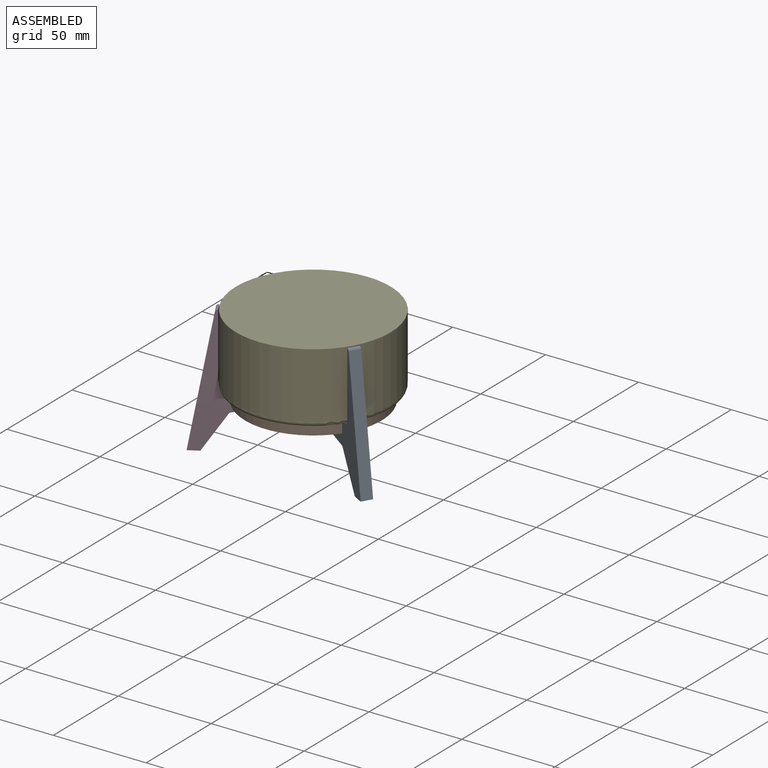
[diagram: assembled view]
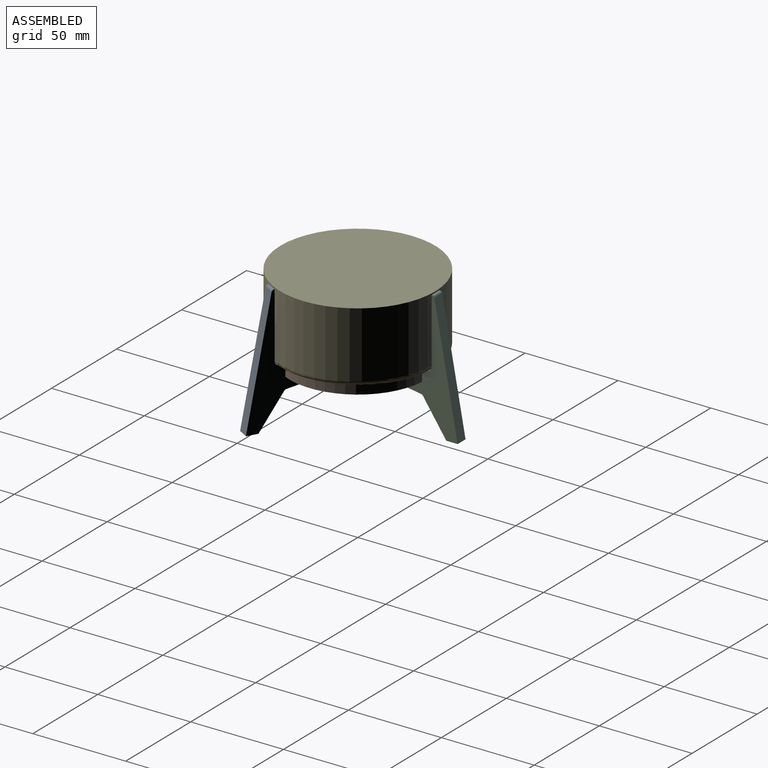
[diagram: assembled view, second angle]
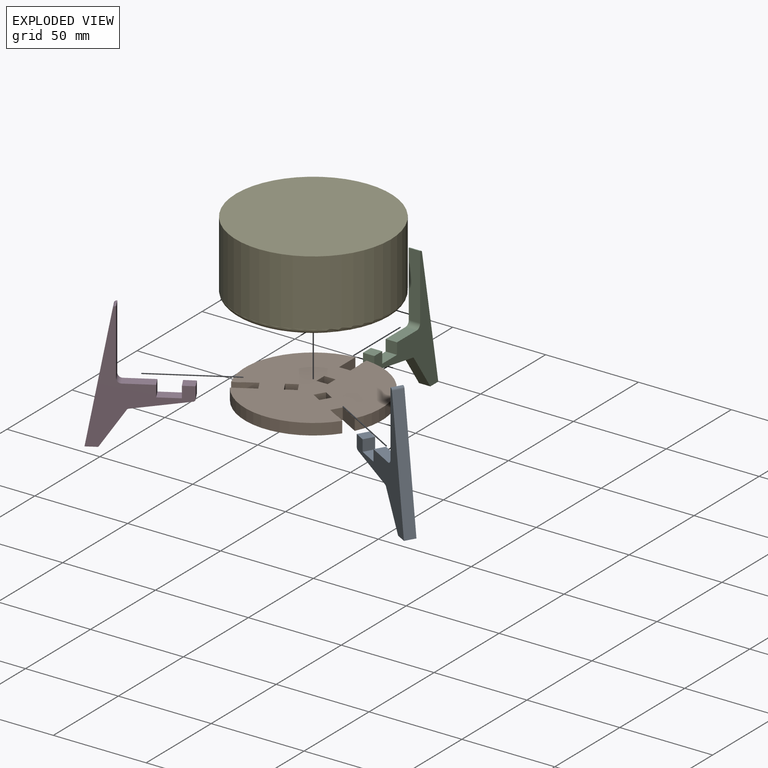
[diagram: exploded view]
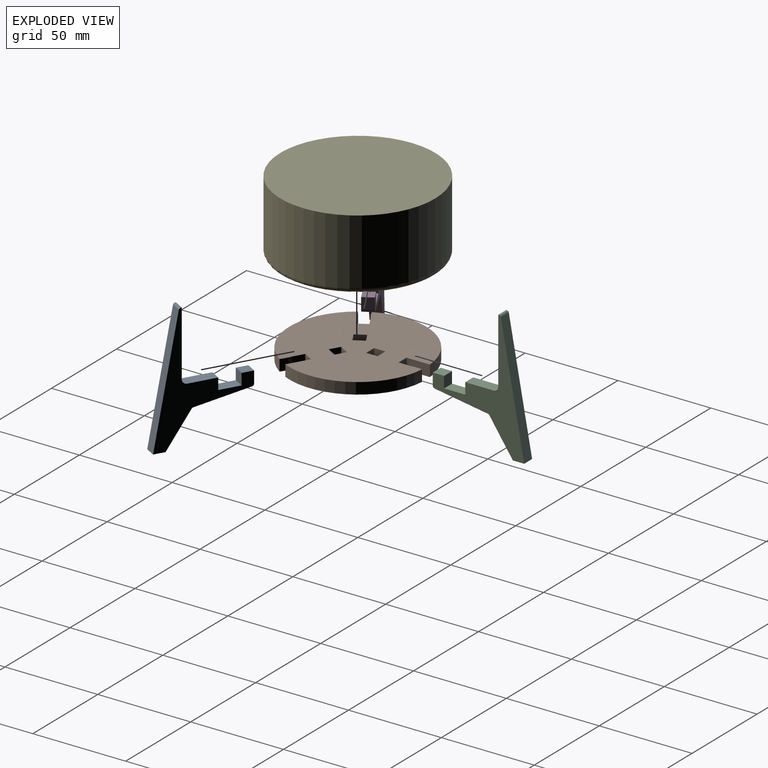
[diagram: exploded view, second angle]
ASSEMBLY  parts=5 mates=4
PART A: 18 faces, bbox 49.2x6.1x68.8 mm
  f0: plane 11.37x6.1mm, normal (0,0,1), area 69.3mm2, adj f1,f11,f12,f13
  f1: plane 6.1x6.1mm, normal (1,0,0), area 37.2mm2, adj f0,f2,f12,f13
  f2: plane 6.1x6.1mm, normal (0,0,1), area 37.2mm2, adj f1,f3,f12,f13
  f3: plane 6.28x6.1mm, normal (-1,0,0), area 38.3mm2, adj f2,f12,f13,f15
  f4: plane 28.55x6.1mm, normal (-0.16,0,-0.99), area 176.3mm2, adj f12,f13,f15,f16
  f5: plane 18.6x12.65mm, normal (-0.83,0,-0.56), area 137.1mm2, adj f6,f12,f13,f16
  f6: plane 6.1x6.1mm, normal (0,0,-1), area 37.2mm2, adj f5,f7,f12,f13
  f7: plane 67.77x12.51mm, normal (0.98,0,0.18), area 420.1mm2, adj f6,f12,f13,f17
  f8: plane 6.1x0.21mm, normal (0,0,1), area 1.3mm2, adj f9,f12,f13,f17
  f9: plane 35.03x6.1mm, normal (-1,0,0), area 213.5mm2, adj f8,f12,f13,f14
  f10: plane 15.24x6.1mm, normal (0,0,1), area 92.9mm2, adj f11,f12,f13,f14
  f11: plane 6.1x6.1mm, normal (-1,0,0), area 37.2mm2, adj f0,f10,f12,f13
  f12: plane 68.81x49.21mm, normal (0,-1,0), area 786.3mm2, adj f0,f1,f2,f3,f4,f5,f6,f7
  f13: plane 68.81x49.21mm, normal (0,1,0), area 786.3mm2, adj f0,f1,f2,f3,f4,f5,f6,f7
  f14: cylinder r=2.54mm len=6.1mm, axis (0,-1,0), area 24.3mm2, adj f9,f10,f12,f13
  f15: cylinder r=1.27mm len=6.1mm, axis (0,1,0), area 10.9mm2, adj f3,f4,f12,f13
  f16: cylinder r=1.27mm len=6.1mm, axis (0,1,0), area 6.3mm2, adj f4,f5,f12,f13
  f17: cylinder r=1.27mm len=6.1mm, axis (0,-1,0), area 10.7mm2, adj f7,f8,f12,f13
PART B: 29 faces, bbox 73.7x73.5x6.1 mm
  f0: plane 6.1x5.28mm, normal (-0.5,0.87,0), area 37.2mm2, adj f1,f26,f27,f28
  f1: plane 6.1x5.28mm, normal (0.87,0.5,0), area 37.2mm2, adj f0,f2,f27,f28
  f2: plane 6.1x5.28mm, normal (0.5,-0.87,0), area 37.2mm2, adj f1,f26,f27,f28
  f3: plane 6.1x5.28mm, normal (0.5,0.87,0), area 37.2mm2, adj f4,f23,f27,f28
  f4: plane 6.1x5.28mm, normal (0.87,-0.5,0), area 37.2mm2, adj f3,f5,f27,f28
  f5: plane 6.1x5.28mm, normal (-0.5,-0.87,0), area 37.2mm2, adj f4,f23,f27,f28
  f6: plane 6.1x6.1mm, normal (0,1,0), area 37.2mm2, adj f7,f24,f27,f28
  f7: plane 6.1x6.1mm, normal (1,0,0), area 37.2mm2, adj f6,f8,f27,f28
  f8: plane 6.1x6.1mm, normal (0,-1,0), area 37.2mm2, adj f7,f24,f27,f28
  f9: plane 6.1x6.1mm, normal (0,1,0), area 37.2mm2, adj f10,f25,f27,f28
  f10: plane 12.57x6.1mm, normal (1,0,0), area 76.6mm2, adj f9,f11,f27,f28
  f11: cylinder r=36.83mm len=52.42mm, axis (0,0,-1), area 433mm2, adj f10,f12,f27,f28
  f12: cylinder r=19.58mm len=6.1mm, axis (0,0,-1), area 38.5mm2, adj f11,f13,f27,f28
  f13: plane 6.1x5.44mm, normal (0.5,-0.87,0), area 38.3mm2, adj f12,f14,f27,f28
  f14: plane 6.1x5.28mm, normal (-0.87,-0.5,0), area 37.2mm2, adj f13,f15,f27,f28
  f15: plane 10.89x6.29mm, normal (-0.5,0.87,0), area 76.6mm2, adj f14,f16,f27,f28
  f16: cylinder r=36.83mm len=60.52mm, axis (0,0,-1), area 433mm2, adj f15,f17,f27,f28
  f17: cylinder r=19.58mm len=6.1mm, axis (0,0,-1), area 38.5mm2, adj f16,f18,f27,f28
  f18: plane 6.1x5.44mm, normal (0.5,0.87,0), area 38.3mm2, adj f17,f19,f27,f28
  f19: plane 6.1x5.28mm, normal (0.87,-0.5,0), area 37.2mm2, adj f18,f20,f27,f28
  f20: plane 10.89x6.29mm, normal (-0.5,-0.87,0), area 76.6mm2, adj f19,f21,f27,f28
  f21: cylinder r=36.83mm len=52.42mm, axis (0,0,-1), area 433mm2, adj f20,f22,f27,f28
  f22: cylinder r=19.58mm len=6.29mm, axis (0,0,-1), area 38.5mm2, adj f21,f25,f27,f28
  f23: plane 6.1x5.28mm, normal (-0.87,0.5,0), area 37.2mm2, adj f3,f5,f27,f28
  f24: plane 6.1x6.1mm, normal (-1,0,0), area 37.2mm2, adj f6,f8,f27,f28
  f25: plane 6.29x6.1mm, normal (-1,0,0), area 38.3mm2, adj f9,f22,f27,f28
  f26: plane 6.1x5.28mm, normal (-0.87,-0.5,0), area 37.2mm2, adj f0,f2,f27,f28
  f27: plane 73.66x73.53mm, normal (0,0,1), area 3921.6mm2, adj f0,f1,f2,f3,f4,f5,f6,f7
  f28: plane 73.66x73.53mm, normal (0,0,-1), area 3921.6mm2, adj f0,f1,f2,f3,f4,f5,f6,f7
PART C: same geometry as A
PART D: same geometry as A
PART E: 4 faces, bbox 90.2x90.2x38.1 mm
  f0: cylinder r=41.66mm len=83.31mm, axis (0,0,-1), area 9307.2mm2, adj f1,f3
  f1: plane 83.31x83.31mm, normal (0,0,1), area 5451.4mm2, adj f0
  f2: plane 78.23x78.23mm, normal (0,0,-1), area 4806.8mm2, adj f3
  f3: torus R=39.12mm, axis (0,0,1), area 1021.1mm2, adj f0,f2
PLACE A rot(axis=(0,0,-1),30deg) t=(33.42,-15.78,6.1)mm
PLACE B at identity
PLACE C rot(axis=(0,0,1),90deg) t=(-3.05,36.83,6.1)mm
PLACE D rot(axis=(0,0,-1),150deg) t=(-30.37,-21.05,6.1)mm
PLACE E t=(0,0,6.1)mm
MATE planar C.f11 <-> B.f9  axis (0,-1,0) through (0,24.13,3.05)mm
MATE planar A.f11 <-> B.f19  axis (-0.87,0.5,0) through (20.9,-12.07,3.05)mm
MATE planar D.f11 <-> B.f14  axis (0.87,0.5,0) through (-20.9,-12.07,3.05)mm
MATE planar E.f0 <-> B.f21  axis (0,0,-1) through (0,0,6.1)mm
